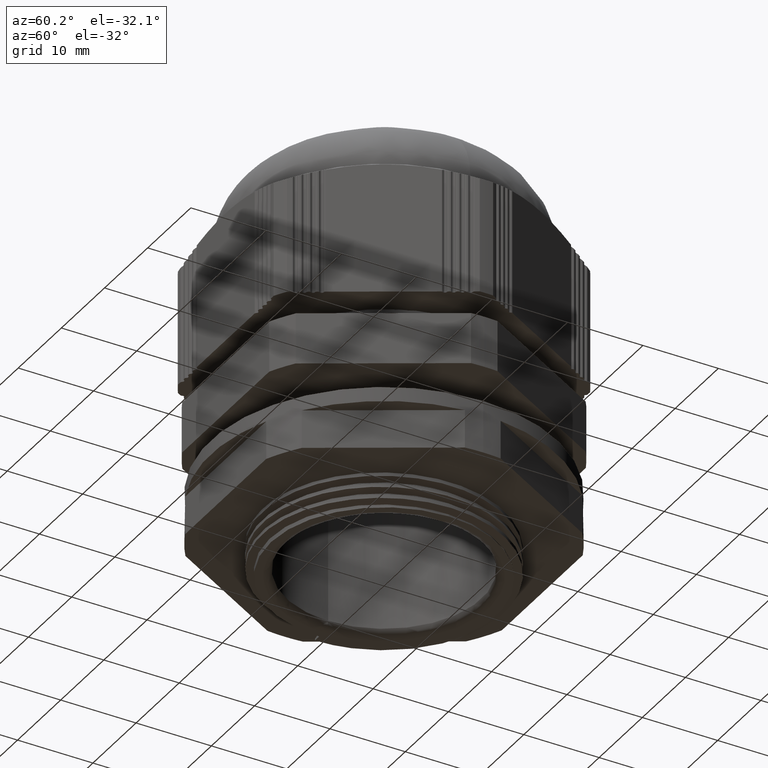
[diagram: clean part render]
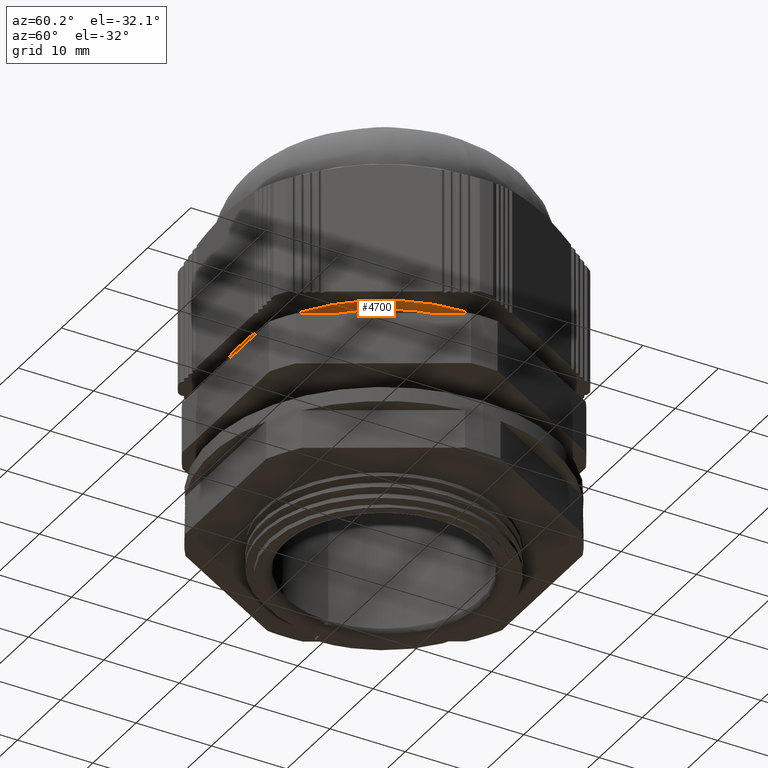
[diagram: same view with one face highlighted and labeled with its STEP entity id]
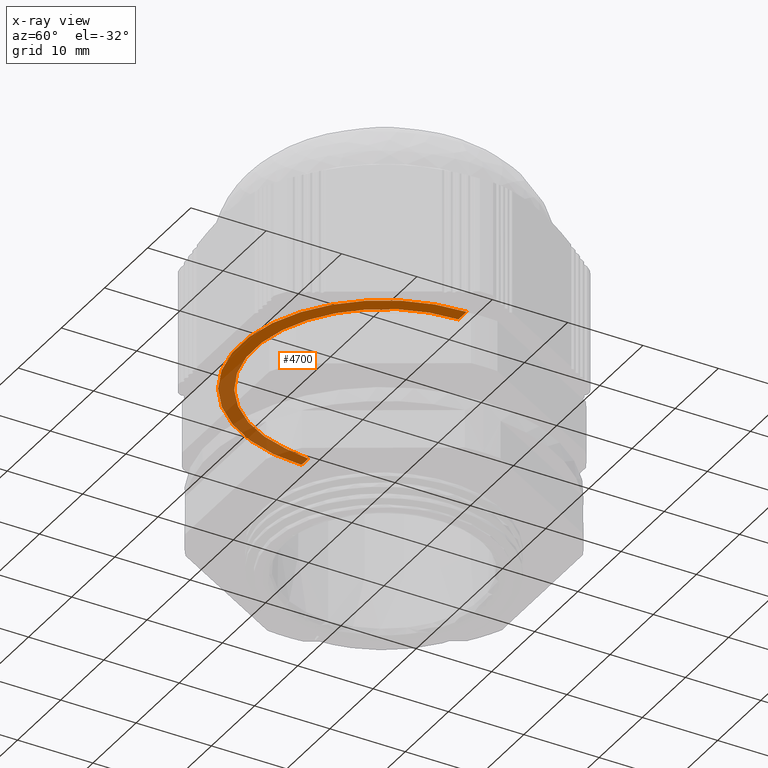
[diagram: x-ray of the same camera — body ghosted, the highlighted face saturated]
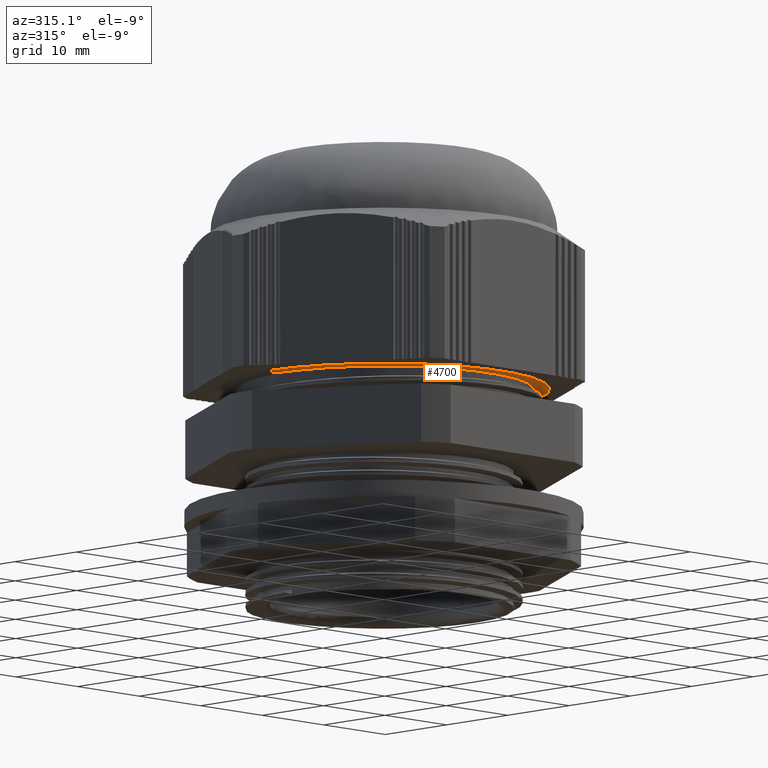
[diagram: same view with one face highlighted and labeled with its STEP entity id]
A machine part, auxiliary view. The second image highlights one B-rep face of the part: STEP entity #4700.
The next image is the same camera in x-ray: the body ghosted, the highlighted face saturated — about 39% of this face is hidden behind the body in this view.
A second angle (auxiliary view) of the same face is appended — the face is thin or edge-on in the first view.
In plain terms, the highlighted conical surface has half-angle 89.264 deg.
Its self-contained STEP definition (entity closure, byte-faithful):
#24 = EDGE_CURVE ( 'NONE', #1043, #1078, #5839, .T. ) ;
#166 = EDGE_CURVE ( 'NONE', #445, #439, #2420, .T. ) ;
#171 = EDGE_CURVE ( 'NONE', #439, #1072, #4325, .T. ) ;
#439 = VERTEX_POINT ( 'NONE', #3367 ) ;
#445 = VERTEX_POINT ( 'NONE', #3365 ) ;
#772 = EDGE_LOOP ( 'NONE', ( #1968, #14677, #14679, #1978, #2016 ) ) ;
#1043 = VERTEX_POINT ( 'NONE', #6672 ) ;
#1072 = VERTEX_POINT ( 'NONE', #6642 ) ;
#1078 = VERTEX_POINT ( 'NONE', #6673 ) ;
#1968 = ORIENTED_EDGE ( 'NONE', *, *, #24, .F. ) ;
#1978 = ORIENTED_EDGE ( 'NONE', *, *, #171, .T. ) ;
#2016 = ORIENTED_EDGE ( 'NONE', *, *, #4875, .T. ) ;
#2354 = VECTOR ( 'NONE', #5846, 999.9999999999998900 ) ;
#2374 = VECTOR ( 'NONE', #4340, 999.9999999999998900 ) ;
#2391 = AXIS2_PLACEMENT_3D ( 'NONE', #4311, #4347, #4318 ) ;
#2420 = CIRCLE ( 'NONE', #2391, 17.24999999999999600 ) ;
#2831 = AXIS2_PLACEMENT_3D ( 'NONE', #10630, #10597, #10634 ) ;
#2878 = CONICAL_SURFACE ( 'NONE', #2831, 19.11270526413731100, 1.557949772283695200 ) ;
#3008 = AXIS2_PLACEMENT_3D ( 'NONE', #12423, #12417, #12411 ) ;
#3018 = CIRCLE ( 'NONE', #3008, 19.11270526413731100 ) ;
#3365 = CARTESIAN_POINT ( 'NONE',  ( -16.93508399807598200, -3.281071467998047300, 25.52917476643447300 ) ) ;
#3367 = CARTESIAN_POINT ( 'NONE',  ( 17.24999999999994700, 0.0000000000000000000, 25.52917476643446900 ) ) ;
#4311 = CARTESIAN_POINT ( 'NONE',  ( 0.0000000000000000000, 0.0000000000000000000, 25.52917476643446900 ) ) ;
#4318 = DIRECTION ( 'NONE',  ( 1.000000000000000000, 0.0000000000000000000, 0.0000000000000000000 ) ) ;
#4325 = LINE ( 'NONE', #4345, #2374 ) ;
#4340 = DIRECTION ( 'NONE',  ( 0.9999174841534312900, 0.0000000000000000000, 0.01284620116115055600 ) ) ;
#4345 = CARTESIAN_POINT ( 'NONE',  ( 19.11270526413731100, 0.0000000000000000000, 25.55310542762027700 ) ) ;
#4347 = DIRECTION ( 'NONE',  ( 0.0000000000000000000, 0.0000000000000000000, 1.000000000000000000 ) ) ;
#4700 = ADVANCED_FACE ( 'NONE', ( #10591 ), #2878, .T. ) ;
#4875 = EDGE_CURVE ( 'NONE', #1072, #1078, #3018, .T. ) ;
#4877 = EDGE_CURVE ( 'NONE', #1043, #445, #11946, .T. ) ;
#5839 = LINE ( 'NONE', #5841, #2354 ) ;
#5841 = CARTESIAN_POINT ( 'NONE',  ( -19.11270526413731100, 2.340631332477252500E-015, 25.55310542762027700 ) ) ;
#5846 = DIRECTION ( 'NONE',  ( -0.9999174841534312900, 1.224545746379974100E-016, 0.01284620116115055600 ) ) ;
#6642 = CARTESIAN_POINT ( 'NONE',  ( 19.11270526413731100, 0.0000000000000000000, 25.55310542762027700 ) ) ;
#6672 = CARTESIAN_POINT ( 'NONE',  ( -17.52212692577661100, -1.316042798791524800E-011, 25.53267085214683300 ) ) ;
#6673 = CARTESIAN_POINT ( 'NONE',  ( -19.11270526413731100, 2.340631332477252500E-015, 25.55310542762027700 ) ) ;
#10591 = FACE_OUTER_BOUND ( 'NONE', #772, .T. ) ;
#10597 = DIRECTION ( 'NONE',  ( 0.0000000000000000000, -0.0000000000000000000, 1.000000000000000000 ) ) ;
#10630 = CARTESIAN_POINT ( 'NONE',  ( 0.0000000000000000000, 0.0000000000000000000, 25.55310542762027700 ) ) ;
#10634 = DIRECTION ( 'NONE',  ( 1.000000000000000000, 0.0000000000000000000, 0.0000000000000000000 ) ) ;
#11946 = B_SPLINE_CURVE_WITH_KNOTS ( 'NONE', 3,
 ( #12388, #12401, #12430, #12415 ),
 .UNSPECIFIED., .F., .F.,
 ( 4, 4 ),
 ( 0.0000000000000000000, 0.003334771463378973000 ),
 .UNSPECIFIED. ) ;
#12388 = CARTESIAN_POINT ( 'NONE',  ( -17.52212692577661100, -1.316042798791524800E-011, 25.53267085214683300 ) ) ;
#12401 = CARTESIAN_POINT ( 'NONE',  ( -17.43418679967124500, -1.110620921953957300, 25.53154106237119700 ) ) ;
#12411 = DIRECTION ( 'NONE',  ( 1.000000000000000000, 0.0000000000000000000, 0.0000000000000000000 ) ) ;
#12415 = CARTESIAN_POINT ( 'NONE',  ( -16.93508399807598200, -3.281071467998047300, 25.52917476643447300 ) ) ;
#12417 = DIRECTION ( 'NONE',  ( -0.0000000000000000000, 0.0000000000000000000, -1.000000000000000000 ) ) ;
#12423 = CARTESIAN_POINT ( 'NONE',  ( 0.0000000000000000000, 0.0000000000000000000, 25.55310542762027700 ) ) ;
#12430 = CARTESIAN_POINT ( 'NONE',  ( -17.23773126968015000, -2.208868115203919600, 25.53037189370555600 ) ) ;
#14677 = ORIENTED_EDGE ( 'NONE', *, *, #4877, .T. ) ;
#14679 = ORIENTED_EDGE ( 'NONE', *, *, #166, .T. ) ;